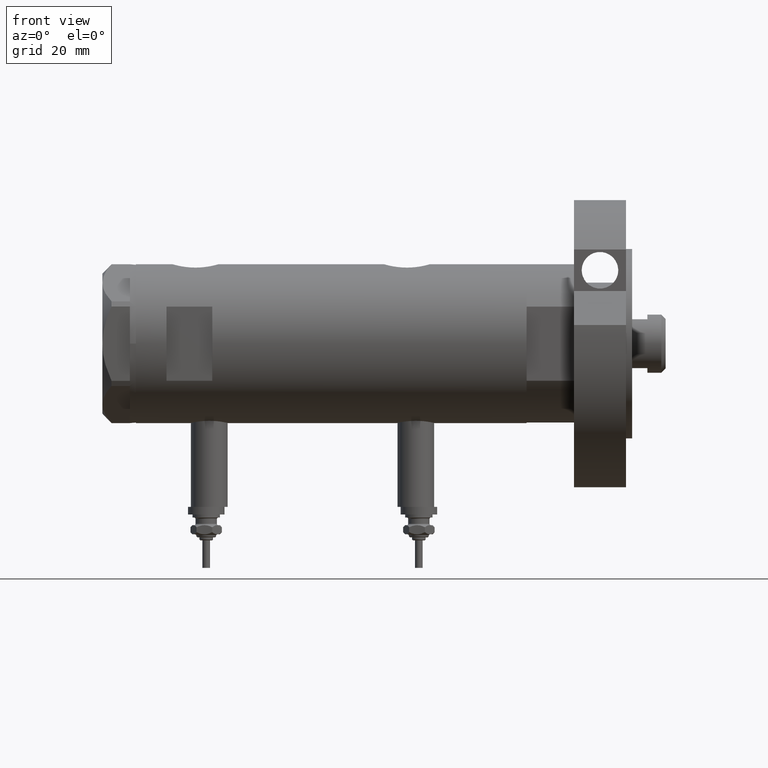
[diagram: clean part render]
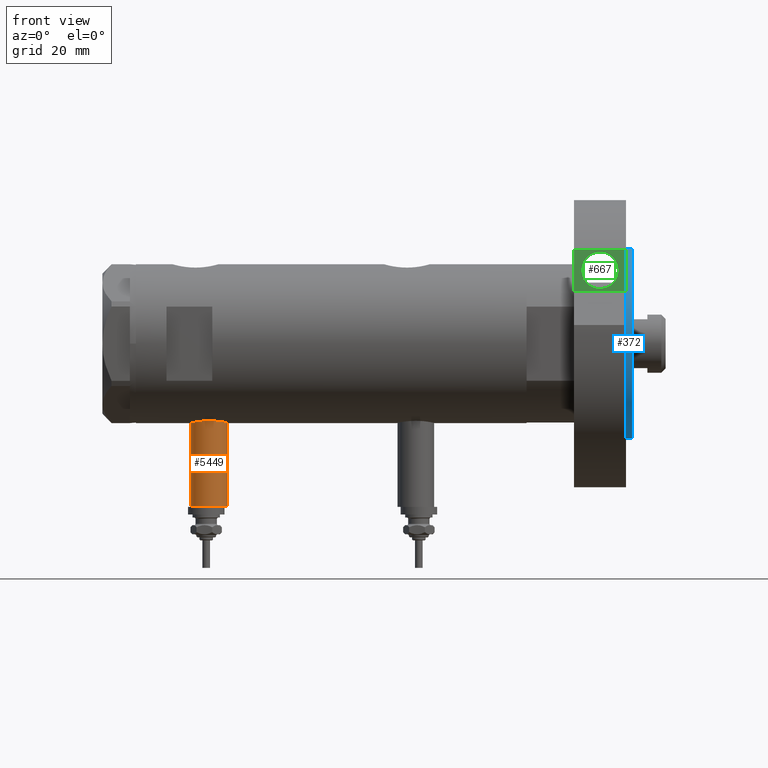
[diagram: same view with three faces highlighted in distinct colors, each labeled with its STEP entity id]
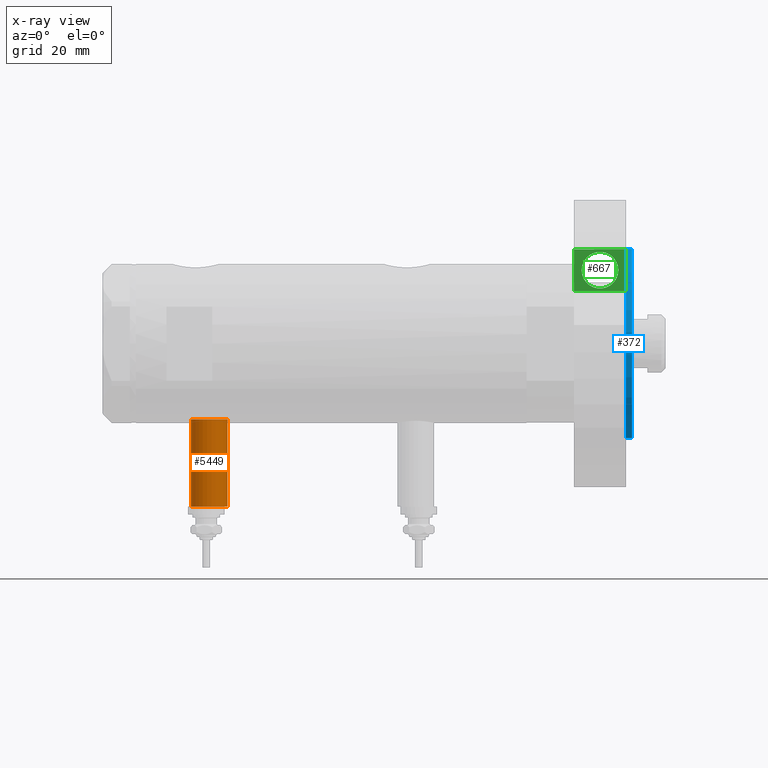
[diagram: x-ray of the same camera — body ghosted, the three highlighted faces saturated]
A machine part, front view with three faces highlighted in distinct colors.
The next image is the same camera in x-ray (body ghosted, the three faces saturated) — at least one of them is partly hidden behind the body in this view.
Their STEP definitions:

[orange] entity #5449 — the highlighted cylindrical surface (edge-blend (fillet) strip) has radius 6 mm, axis along (0, 0, 1).
#5 = CARTESIAN_POINT ( 'NONE',  ( -24.80000000000000426, 0.000000000000000000, 33.95000000000000995 ) ) ;
#68 = FACE_OUTER_BOUND ( 'NONE', #2363, .T. ) ;
#155 = DIRECTION ( 'NONE',  ( 1.000000000000000000, -0.000000000000000000, -0.000000000000000000 ) ) ;
#161 = CARTESIAN_POINT ( 'NONE',  ( -53.40000000000000568, 0.000000000000000000, 33.95000000000000995 ) ) ;
#213 = DIRECTION ( 'NONE',  ( -1.000000000000000000, 0.000000000000000000, 0.000000000000000000 ) ) ;
#1047 = ORIENTED_EDGE ( 'NONE', *, *, #6839, .F. ) ;
#1371 = DIRECTION ( 'NONE',  ( 0.000000000000000000, 0.000000000000000000, -1.000000000000000000 ) ) ;
#1555 = VERTEX_POINT ( 'NONE', #5 ) ;
#1797 = CIRCLE ( 'NONE', #1935, 5.999999999999998224 ) ;
#1904 = CYLINDRICAL_SURFACE ( 'NONE', #5005, 5.999999999999998224 ) ;
#1935 = AXIS2_PLACEMENT_3D ( 'NONE', #4517, #213, #7567 ) ;
#2031 = DIRECTION ( 'NONE',  ( 1.000000000000000000, -0.000000000000000000, -0.000000000000000000 ) ) ;
#2075 = VECTOR ( 'NONE', #2570, 1000.000000000000000 ) ;
#2363 = EDGE_LOOP ( 'NONE', ( #1047, #3142, #2945, #4365 ) ) ;
#2570 = DIRECTION ( 'NONE',  ( 1.000000000000000000, -0.000000000000000000, -0.000000000000000000 ) ) ;
#2756 = CARTESIAN_POINT ( 'NONE',  ( -53.40000000000000568, 0.000000000000000000, 39.95000000000000284 ) ) ;
#2945 = ORIENTED_EDGE ( 'NONE', *, *, #7521, .T. ) ;
#2946 = VECTOR ( 'NONE', #2031, 1000.000000000000000 ) ;
#3018 = VERTEX_POINT ( 'NONE', #5230 ) ;
#3142 = ORIENTED_EDGE ( 'NONE', *, *, #4624, .F. ) ;
#3708 = CIRCLE ( 'NONE', #6508, 5.999999999999998224 ) ;
#4276 = EDGE_CURVE ( 'NONE', #1555, #5687, #1797, .T. ) ;
#4365 = ORIENTED_EDGE ( 'NONE', *, *, #4276, .T. ) ;
#4517 = CARTESIAN_POINT ( 'NONE',  ( -24.80000000000000426, 0.000000000000000000, 39.95000000000000284 ) ) ;
#4624 = EDGE_CURVE ( 'NONE', #3018, #5233, #3708, .T. ) ;
#5005 = AXIS2_PLACEMENT_3D ( 'NONE', #5645, #155, #1371 ) ;
#5033 = CARTESIAN_POINT ( 'NONE',  ( -53.40000000000000568, 7.347880794884108889E-16, 45.95000000000000284 ) ) ;
#5230 = CARTESIAN_POINT ( 'NONE',  ( -53.40000000000000568, 0.000000000000000000, 33.95000000000000995 ) ) ;
#5233 = VERTEX_POINT ( 'NONE', #5033 ) ;
#5449 = ADVANCED_FACE ( 'NONE', ( #68 ), #1904, .T. ) ;
#5645 = CARTESIAN_POINT ( 'NONE',  ( -53.40000000000000568, 0.000000000000000000, 39.95000000000000284 ) ) ;
#5687 = VERTEX_POINT ( 'NONE', #6298 ) ;
#5866 = DIRECTION ( 'NONE',  ( 0.000000000000000000, 0.000000000000000000, 1.000000000000000000 ) ) ;
#6161 = CARTESIAN_POINT ( 'NONE',  ( -53.40000000000000568, 7.347880794884112834E-16, 45.95000000000000284 ) ) ;
#6298 = CARTESIAN_POINT ( 'NONE',  ( -24.80000000000000426, 7.347880794884108889E-16, 45.95000000000000284 ) ) ;
#6508 = AXIS2_PLACEMENT_3D ( 'NONE', #2756, #7874, #5866 ) ;
#6763 = LINE ( 'NONE', #6161, #2075 ) ;
#6839 = EDGE_CURVE ( 'NONE', #5233, #5687, #6763, .T. ) ;
#7521 = EDGE_CURVE ( 'NONE', #3018, #1555, #7833, .T. ) ;
#7567 = DIRECTION ( 'NONE',  ( 0.000000000000000000, 0.000000000000000000, 1.000000000000000000 ) ) ;
#7833 = LINE ( 'NONE', #161, #2946 ) ;
#7874 = DIRECTION ( 'NONE',  ( -1.000000000000000000, 0.000000000000000000, 0.000000000000000000 ) ) ;

[blue] entity #372 — the highlighted cylindrical surface (partial cylindrical patch) has radius 31 mm, axis along (-1, -0, 0).
#31 = VERTEX_POINT ( 'NONE', #2995 ) ;
#126 = CARTESIAN_POINT ( 'NONE',  ( 0.000000000000000000, 0.000000000000000000, 19.00000000000000355 ) ) ;
#188 = VERTEX_POINT ( 'NONE', #607 ) ;
#372 = ADVANCED_FACE ( 'NONE', ( #6176 ), #3699, .T. ) ;
#395 = CARTESIAN_POINT ( 'NONE',  ( 0.000000000000000000, 0.000000000000000000, 19.00000000000000355 ) ) ;
#607 = CARTESIAN_POINT ( 'NONE',  ( 31.00000000000000711, 3.796405077356795904E-15, 17.00000000000000000 ) ) ;
#899 = VERTEX_POINT ( 'NONE', #7468 ) ;
#1127 = CIRCLE ( 'NONE', #7561, 31.00000000000000711 ) ;
#1294 = CIRCLE ( 'NONE', #3599, 31.00000000000000711 ) ;
#1428 = DIRECTION ( 'NONE',  ( -0.000000000000000000, -0.000000000000000000, -1.000000000000000000 ) ) ;
#1476 = ORIENTED_EDGE ( 'NONE', *, *, #4437, .F. ) ;
#1829 = LINE ( 'NONE', #2423, #5585 ) ;
#2279 = EDGE_CURVE ( 'NONE', #31, #188, #1829, .T. ) ;
#2423 = CARTESIAN_POINT ( 'NONE',  ( 31.00000000000000711, 3.796405077356795904E-15, 19.00000000000000355 ) ) ;
#2881 = CARTESIAN_POINT ( 'NONE',  ( -31.00000000000000711, 0.000000000000000000, 19.00000000000000355 ) ) ;
#2995 = CARTESIAN_POINT ( 'NONE',  ( 31.00000000000000711, 3.796405077356795904E-15, 19.00000000000000355 ) ) ;
#3196 = LINE ( 'NONE', #6235, #5508 ) ;
#3511 = DIRECTION ( 'NONE',  ( 0.000000000000000000, 0.000000000000000000, 1.000000000000000000 ) ) ;
#3599 = AXIS2_PLACEMENT_3D ( 'NONE', #7587, #4537, #6703 ) ;
#3605 = EDGE_LOOP ( 'NONE', ( #1476, #6976, #4899, #6466 ) ) ;
#3699 = CYLINDRICAL_SURFACE ( 'NONE', #4428, 31.00000000000000711 ) ;
#3841 = DIRECTION ( 'NONE',  ( -0.000000000000000000, -0.000000000000000000, -1.000000000000000000 ) ) ;
#3868 = DIRECTION ( 'NONE',  ( -1.000000000000000000, 0.000000000000000000, 0.000000000000000000 ) ) ;
#4308 = VERTEX_POINT ( 'NONE', #2881 ) ;
#4428 = AXIS2_PLACEMENT_3D ( 'NONE', #126, #1428, #3868 ) ;
#4437 = EDGE_CURVE ( 'NONE', #31, #4308, #1127, .T. ) ;
#4537 = DIRECTION ( 'NONE',  ( 0.000000000000000000, 0.000000000000000000, 1.000000000000000000 ) ) ;
#4848 = DIRECTION ( 'NONE',  ( -0.000000000000000000, -0.000000000000000000, -1.000000000000000000 ) ) ;
#4899 = ORIENTED_EDGE ( 'NONE', *, *, #5922, .T. ) ;
#5338 = DIRECTION ( 'NONE',  ( 1.000000000000000000, 0.000000000000000000, 0.000000000000000000 ) ) ;
#5508 = VECTOR ( 'NONE', #3841, 1000.000000000000000 ) ;
#5585 = VECTOR ( 'NONE', #4848, 1000.000000000000000 ) ;
#5922 = EDGE_CURVE ( 'NONE', #188, #899, #1294, .T. ) ;
#6176 = FACE_OUTER_BOUND ( 'NONE', #3605, .T. ) ;
#6235 = CARTESIAN_POINT ( 'NONE',  ( -31.00000000000000711, 0.000000000000000000, 19.00000000000000355 ) ) ;
#6466 = ORIENTED_EDGE ( 'NONE', *, *, #7741, .F. ) ;
#6703 = DIRECTION ( 'NONE',  ( 1.000000000000000000, 0.000000000000000000, 0.000000000000000000 ) ) ;
#6976 = ORIENTED_EDGE ( 'NONE', *, *, #2279, .T. ) ;
#7468 = CARTESIAN_POINT ( 'NONE',  ( -31.00000000000000711, 0.000000000000000000, 17.00000000000000000 ) ) ;
#7561 = AXIS2_PLACEMENT_3D ( 'NONE', #395, #3511, #5338 ) ;
#7587 = CARTESIAN_POINT ( 'NONE',  ( 0.000000000000000000, 0.000000000000000000, 17.00000000000000000 ) ) ;
#7741 = EDGE_CURVE ( 'NONE', #4308, #899, #3196, .T. ) ;

[green] entity #667 — the highlighted planar face has unit normal (-0, 1, -0).
#28 = CARTESIAN_POINT ( 'NONE',  ( 3.617158501555293296E-14, 35.47361286101151734, 17.00000000000000000 ) ) ;
#169 = LINE ( 'NONE', #7443, #6517 ) ;
#518 = FACE_OUTER_BOUND ( 'NONE', #4287, .T. ) ;
#587 = VECTOR ( 'NONE', #1858, 1000.000000000000000 ) ;
#667 = ADVANCED_FACE ( 'NONE', ( #2381, #518 ), #5437, .F. ) ;
#814 = EDGE_CURVE ( 'NONE', #3046, #5619, #1745, .T. ) ;
#1181 = CARTESIAN_POINT ( 'NONE',  ( 24.02717135699461792, 35.47361286101149602, 2.499999999999997780 ) ) ;
#1499 = CARTESIAN_POINT ( 'NONE',  ( 24.02717135699461792, 35.47361286101149602, 14.50000000000000355 ) ) ;
#1655 = LINE ( 'NONE', #28, #587 ) ;
#1713 = ORIENTED_EDGE ( 'NONE', *, *, #5706, .F. ) ;
#1745 = CIRCLE ( 'NONE', #3393, 6.000000000000001776 ) ;
#1747 = EDGE_CURVE ( 'NONE', #1825, #5843, #1655, .T. ) ;
#1825 = VERTEX_POINT ( 'NONE', #3270 ) ;
#1858 = DIRECTION ( 'NONE',  ( 1.000000000000000000, -1.019675812477181804E-15, 0.000000000000000000 ) ) ;
#2044 = CIRCLE ( 'NONE', #4168, 6.000000000000001776 ) ;
#2138 = CARTESIAN_POINT ( 'NONE',  ( 30.83217135699462830, 35.47361286101148892, 17.00000000000000000 ) ) ;
#2262 = DIRECTION ( 'NONE',  ( -1.019675812477181804E-15, -1.000000000000000000, -0.000000000000000000 ) ) ;
#2381 = FACE_BOUND ( 'NONE', #4646, .T. ) ;
#2572 = VECTOR ( 'NONE', #4267, 1000.000000000000000 ) ;
#2623 = EDGE_CURVE ( 'NONE', #5619, #3046, #2044, .T. ) ;
#2653 = ORIENTED_EDGE ( 'NONE', *, *, #814, .T. ) ;
#2872 = DIRECTION ( 'NONE',  ( 1.000000000000000000, -1.156482317317871133E-15, 0.000000000000000000 ) ) ;
#2988 = LINE ( 'NONE', #7474, #2572 ) ;
#3046 = VERTEX_POINT ( 'NONE', #1181 ) ;
#3080 = VECTOR ( 'NONE', #6024, 1000.000000000000000 ) ;
#3270 = CARTESIAN_POINT ( 'NONE',  ( 17.22217135699461110, 35.47361286101150313, 17.00000000000000000 ) ) ;
#3296 = VERTEX_POINT ( 'NONE', #5461 ) ;
#3393 = AXIS2_PLACEMENT_3D ( 'NONE', #3768, #4324, #5056 ) ;
#3588 = CARTESIAN_POINT ( 'NONE',  ( 17.22217135699461110, 35.47361286101150313, 0.000000000000000000 ) ) ;
#3768 = CARTESIAN_POINT ( 'NONE',  ( 24.02717135699461792, 35.47361286101149602, 8.500000000000000000 ) ) ;
#4143 = ORIENTED_EDGE ( 'NONE', *, *, #1747, .T. ) ;
#4168 = AXIS2_PLACEMENT_3D ( 'NONE', #5280, #2262, #2872 ) ;
#4267 = DIRECTION ( 'NONE',  ( 1.000000000000000000, -1.019675812477181606E-15, 0.000000000000000000 ) ) ;
#4287 = EDGE_LOOP ( 'NONE', ( #4143, #1713, #5036, #4421 ) ) ;
#4324 = DIRECTION ( 'NONE',  ( -1.019675812477181804E-15, -1.000000000000000000, -0.000000000000000000 ) ) ;
#4421 = ORIENTED_EDGE ( 'NONE', *, *, #7830, .T. ) ;
#4490 = VERTEX_POINT ( 'NONE', #4836 ) ;
#4497 = ORIENTED_EDGE ( 'NONE', *, *, #2623, .T. ) ;
#4646 = EDGE_LOOP ( 'NONE', ( #4497, #2653 ) ) ;
#4836 = CARTESIAN_POINT ( 'NONE',  ( 17.22217135699460755, 35.47361286101150313, 0.000000000000000000 ) ) ;
#4849 = DIRECTION ( 'NONE',  ( -1.019675812477181804E-15, -1.000000000000000000, 0.000000000000000000 ) ) ;
#5036 = ORIENTED_EDGE ( 'NONE', *, *, #6778, .F. ) ;
#5056 = DIRECTION ( 'NONE',  ( 1.000000000000000000, -1.156482317317871133E-15, 0.000000000000000000 ) ) ;
#5189 = AXIS2_PLACEMENT_3D ( 'NONE', #5959, #4849, #7308 ) ;
#5280 = CARTESIAN_POINT ( 'NONE',  ( 24.02717135699461792, 35.47361286101149602, 8.500000000000000000 ) ) ;
#5437 = PLANE ( 'NONE',  #5189 ) ;
#5461 = CARTESIAN_POINT ( 'NONE',  ( 30.83217135699462830, 35.47361286101148892, 0.000000000000000000 ) ) ;
#5619 = VERTEX_POINT ( 'NONE', #1499 ) ;
#5691 = DIRECTION ( 'NONE',  ( -0.000000000000000000, -0.000000000000000000, 1.000000000000000000 ) ) ;
#5706 = EDGE_CURVE ( 'NONE', #3296, #5843, #169, .T. ) ;
#5843 = VERTEX_POINT ( 'NONE', #2138 ) ;
#5959 = CARTESIAN_POINT ( 'NONE',  ( 17.22217135699461110, 35.47361286101150313, 0.000000000000000000 ) ) ;
#6024 = DIRECTION ( 'NONE',  ( -0.000000000000000000, -0.000000000000000000, 1.000000000000000000 ) ) ;
#6517 = VECTOR ( 'NONE', #5691, 1000.000000000000000 ) ;
#6665 = LINE ( 'NONE', #3588, #3080 ) ;
#6778 = EDGE_CURVE ( 'NONE', #4490, #3296, #2988, .T. ) ;
#7308 = DIRECTION ( 'NONE',  ( 1.000000000000000000, -1.019675812477181804E-15, 0.000000000000000000 ) ) ;
#7443 = CARTESIAN_POINT ( 'NONE',  ( 30.83217135699462830, 35.47361286101148892, 0.000000000000000000 ) ) ;
#7474 = CARTESIAN_POINT ( 'NONE',  ( 17.22217135699461110, 35.47361286101150313, 0.000000000000000000 ) ) ;
#7830 = EDGE_CURVE ( 'NONE', #4490, #1825, #6665, .T. ) ;